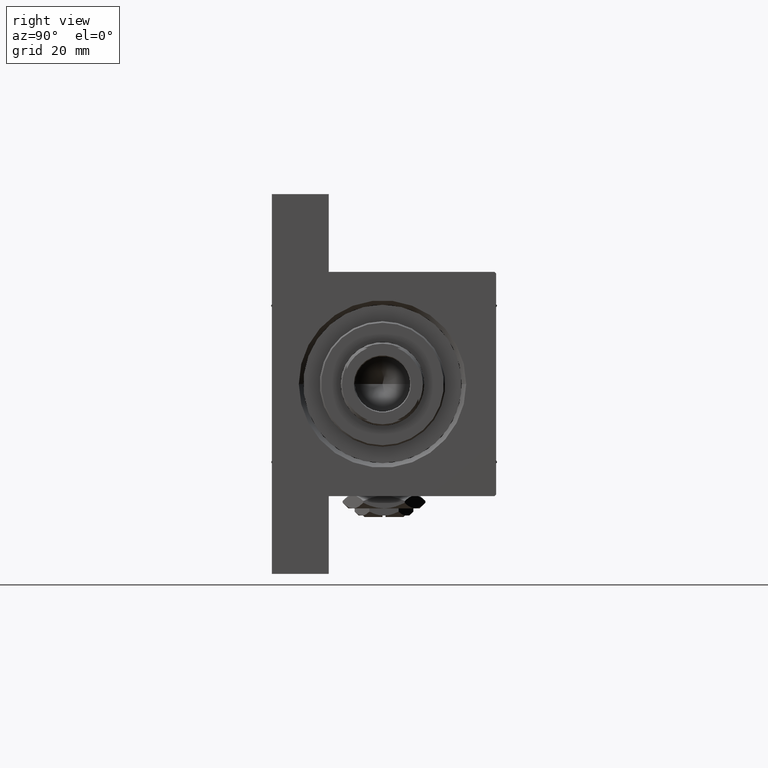
[diagram: clean part render]
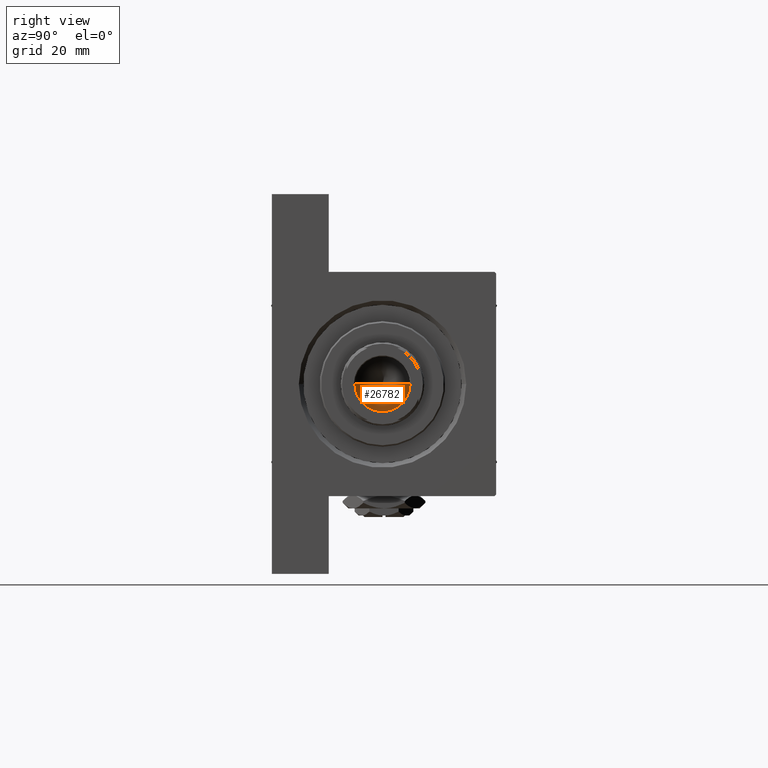
[diagram: same view with one face highlighted and labeled with its STEP entity id]
A machine part, right view. The second image highlights one B-rep face of the part: STEP entity #26782.
In plain terms, the highlighted conical surface has half-angle 59 deg.
Its self-contained STEP definition (entity closure, byte-faithful):
#634 = DIRECTION ( 'NONE',  ( 1.000000000000000000, 0.000000000000000000, 0.000000000000000000 ) ) ;
#836 = DIRECTION ( 'NONE',  ( -0.8571673007021117785, 1.049727191138617956E-16, 0.5150380749100550437 ) ) ;
#1393 = CIRCLE ( 'NONE', #38991, 9.249999999999992895 ) ;
#5186 = EDGE_CURVE ( 'NONE', #33658, #41370, #16879, .T. ) ;
#6393 = CARTESIAN_POINT ( 'NONE',  ( 9.249999999999992895, 0.000000000000000000, 107.0000000000000142 ) ) ;
#6761 = VECTOR ( 'NONE', #21419, 1000.000000000000000 ) ;
#8768 = DIRECTION ( 'NONE',  ( -0.000000000000000000, -0.000000000000000000, 1.000000000000000000 ) ) ;
#10201 = EDGE_CURVE ( 'NONE', #33658, #48051, #13185, .T. ) ;
#12286 = CARTESIAN_POINT ( 'NONE',  ( 0.000000000000000000, 0.000000000000000000, 107.0000000000000142 ) ) ;
#13185 = LINE ( 'NONE', #6393, #6761 ) ;
#14043 = CARTESIAN_POINT ( 'NONE',  ( 9.249999999999992895, 0.000000000000000000, 107.0000000000000142 ) ) ;
#16879 = LINE ( 'NONE', #43175, #18707 ) ;
#17222 = EDGE_CURVE ( 'NONE', #48051, #41370, #1393, .T. ) ;
#18707 = VECTOR ( 'NONE', #836, 1000.000000000000000 ) ;
#19675 = CARTESIAN_POINT ( 'NONE',  ( 0.000000000000000000, 0.000000000000000000, 107.0000000000000142 ) ) ;
#21419 = DIRECTION ( 'NONE',  ( 0.8571673007021117785, 0.000000000000000000, 0.5150380749100550437 ) ) ;
#21700 = CONICAL_SURFACE ( 'NONE', #29718, 9.249999999999992895, 1.029744258676653423 ) ;
#23785 = DIRECTION ( 'NONE',  ( 1.000000000000000000, 0.000000000000000000, 0.000000000000000000 ) ) ;
#25347 = CARTESIAN_POINT ( 'NONE',  ( -9.769621978240258809E-15, 0.000000000000000000, 101.4420392739950785 ) ) ;
#26126 = CARTESIAN_POINT ( 'NONE',  ( -9.249999999999992895, 1.132798289211300712E-15, 107.0000000000000142 ) ) ;
#26782 = ADVANCED_FACE ( 'NONE', ( #46352 ), #21700, .F. ) ;
#28931 = EDGE_LOOP ( 'NONE', ( #44573, #36446, #39486 ) ) ;
#29718 = AXIS2_PLACEMENT_3D ( 'NONE', #12286, #8768, #23785 ) ;
#30703 = DIRECTION ( 'NONE',  ( -0.000000000000000000, -0.000000000000000000, 1.000000000000000000 ) ) ;
#33658 = VERTEX_POINT ( 'NONE', #25347 ) ;
#36446 = ORIENTED_EDGE ( 'NONE', *, *, #10201, .T. ) ;
#38991 = AXIS2_PLACEMENT_3D ( 'NONE', #19675, #30703, #634 ) ;
#39486 = ORIENTED_EDGE ( 'NONE', *, *, #17222, .T. ) ;
#41370 = VERTEX_POINT ( 'NONE', #26126 ) ;
#43175 = CARTESIAN_POINT ( 'NONE',  ( -9.249999999999992895, 1.132798289211300712E-15, 107.0000000000000142 ) ) ;
#44573 = ORIENTED_EDGE ( 'NONE', *, *, #5186, .F. ) ;
#46352 = FACE_OUTER_BOUND ( 'NONE', #28931, .T. ) ;
#48051 = VERTEX_POINT ( 'NONE', #14043 ) ;